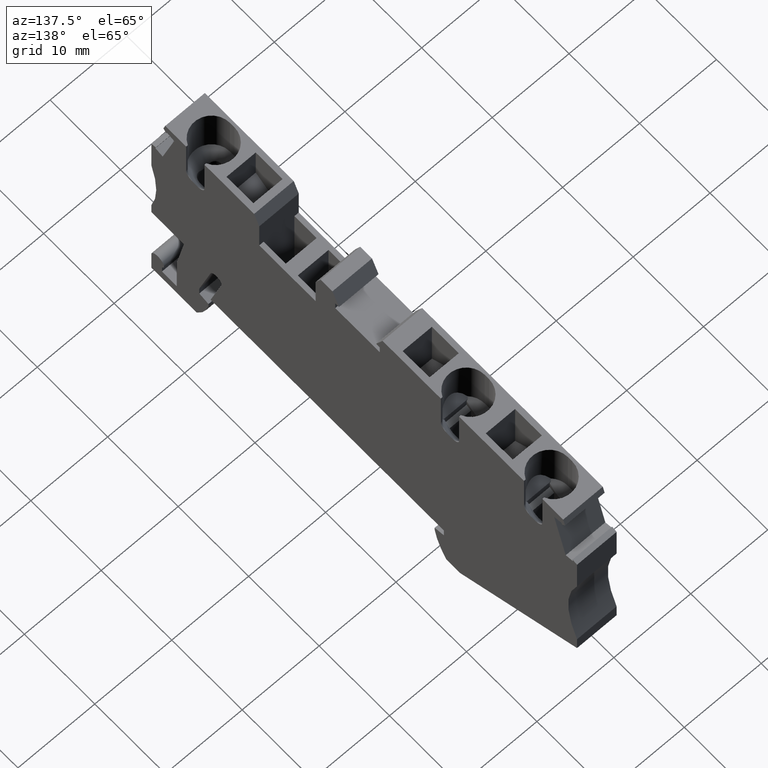
[diagram: clean part render]
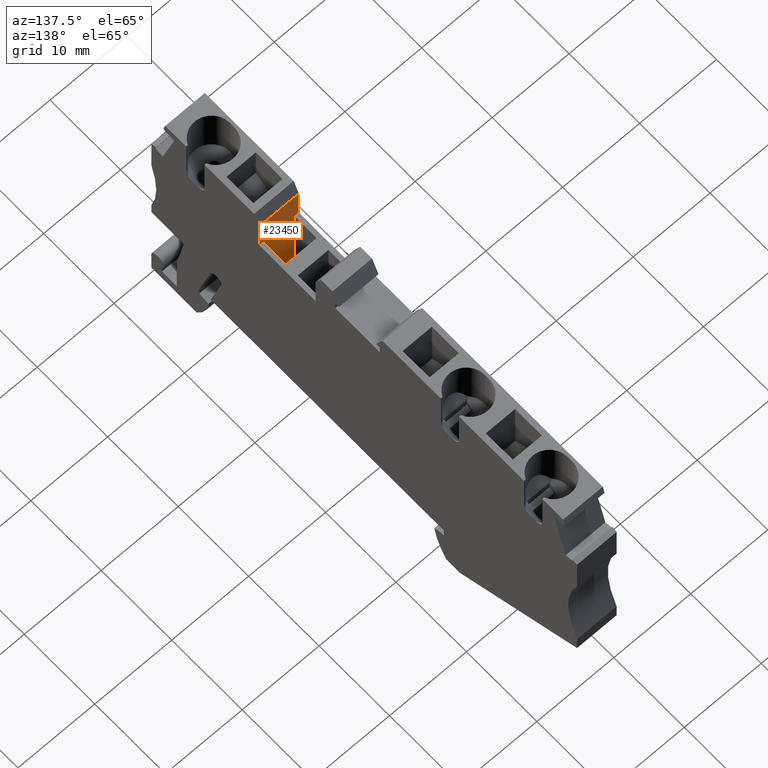
[diagram: same view with one face highlighted and labeled with its STEP entity id]
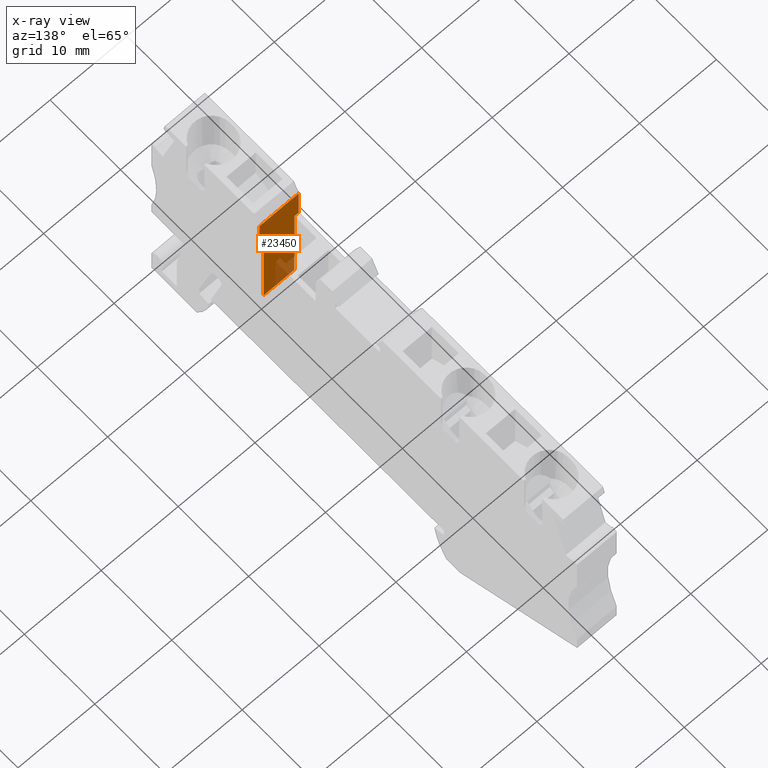
[diagram: x-ray of the same camera — body ghosted, the highlighted face saturated]
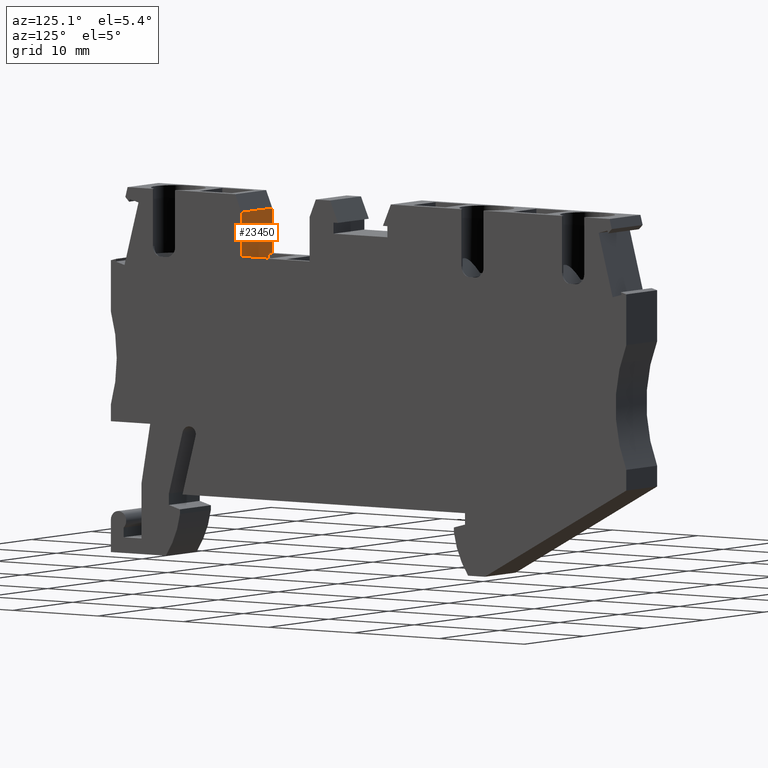
[diagram: same view with one face highlighted and labeled with its STEP entity id]
A machine part, auxiliary view. The second image highlights one B-rep face of the part: STEP entity #23450.
The next image is the same camera in x-ray: the body ghosted, the highlighted face saturated — about 14% of this face is hidden behind the body in this view.
A second angle (auxiliary view) of the same face is appended — the face is thin or edge-on in the first view.
In plain terms, the highlighted planar face has unit normal (0, 1, 0).
Its self-contained STEP definition (entity closure, byte-faithful):
#1630=CARTESIAN_POINT('',(-7.06783277832441,-15.1500000000016,49.095));
#1640=VERTEX_POINT('',#1630);
#1670=CARTESIAN_POINT('',(-7.06783277832442,-15.1500000000016,53.67));
#1680=DIRECTION('',(0.,0.,1.));
#1690=VECTOR('',#1680,1.);
#1700=LINE('',#1670,#1690);
#1710=CARTESIAN_POINT('',(-7.06783277832442,-15.1500000000016,48.52));
#1720=VERTEX_POINT('',#1710);
#1730=EDGE_CURVE('',#1720,#1640,#1700,.T.);
#2270=CARTESIAN_POINT('',(-7.06783277832441,-15.1500000000016,53.67));
#2280=VERTEX_POINT('',#2270);
#2310=CARTESIAN_POINT('',(-7.06783277832442,-15.1500000000016,53.67));
#2320=DIRECTION('',(0.,0.,1.));
#2330=VECTOR('',#2320,1.);
#2340=LINE('',#2310,#2330);
#2350=CARTESIAN_POINT('',(-7.06783277832441,-15.1500000000016,53.095));
#2360=VERTEX_POINT('',#2350);
#2370=EDGE_CURVE('',#2360,#2280,#2340,.T.);
#16000=CARTESIAN_POINT('',(-7.06783277832444,-10.8500000000033,53.67));
#16010=VERTEX_POINT('',#16000);
#16040=CARTESIAN_POINT('',(-7.06783277832433,-41.5717607425285,53.67));
#16050=DIRECTION('',(-2.76167977375508E-15,1.,0.));
#16060=VECTOR('',#16050,1.);
#16070=LINE('',#16040,#16060);
#16080=EDGE_CURVE('',#2280,#16010,#16070,.T.);
#22790=CARTESIAN_POINT('',(-7.06783277832437,-27.3499999999999,49.095));
#22800=VERTEX_POINT('',#22790);
#22880=CARTESIAN_POINT('',(-7.06783277832437,-27.3499999999999,53.095));
#22890=VERTEX_POINT('',#22880);
#22920=CARTESIAN_POINT('',(-7.06783277832437,-27.3499999999999,53.67));
#22930=DIRECTION('',(4.01826023596953E-30,-1.46035561483312E-15,1.));
#22940=VECTOR('',#22930,1.);
#22950=LINE('',#22920,#22940);
#22960=EDGE_CURVE('',#22800,#22890,#22950,.T.);
#23080=CARTESIAN_POINT('',(-7.06783277832438,-25.9026279443781,52.345));
#23090=DIRECTION('',(1.,2.76167977375508E-15,-0.));
#23100=DIRECTION('',(-2.76167977375508E-15,1.,0.));
#23110=AXIS2_PLACEMENT_3D('',#23080,#23090,#23100);
#23120=PLANE('',#23110);
#23130=CARTESIAN_POINT('',(-7.06783277832433,-41.5717607425285,53.095));
#23140=DIRECTION('',(2.76167977375508E-15,-1.,0.));
#23150=VECTOR('',#23140,1.);
#23160=LINE('',#23130,#23150);
#23170=EDGE_CURVE('',#2360,#22890,#23160,.T.);
#23180=ORIENTED_EDGE('',*,*,#23170,.T.);
#23190=ORIENTED_EDGE('',*,*,#2370,.F.);
#23200=ORIENTED_EDGE('',*,*,#16080,.F.);
#23210=CARTESIAN_POINT('',(-7.06783277832442,-10.8500000000034,53.67));
#23220=DIRECTION('',(0.,0.,1.));
#23230=VECTOR('',#23220,1.);
#23240=LINE('',#23210,#23230);
#23250=CARTESIAN_POINT('',(-7.06783277832444,-10.8500000000033,48.52));
#23260=VERTEX_POINT('',#23250);
#23270=EDGE_CURVE('',#23260,#16010,#23240,.T.);
#23280=ORIENTED_EDGE('',*,*,#23270,.T.);
#23290=CARTESIAN_POINT('',(-7.06783277832433,-41.5717607425285,48.52));
#23300=DIRECTION('',(2.76167977375508E-15,-1.,0.));
#23310=VECTOR('',#23300,1.);
#23320=LINE('',#23290,#23310);
#23330=EDGE_CURVE('',#23260,#1720,#23320,.T.);
#23340=ORIENTED_EDGE('',*,*,#23330,.F.);
#23350=ORIENTED_EDGE('',*,*,#1730,.F.);
#23360=CARTESIAN_POINT('',(-7.06783277832433,-41.5717607425285,49.095));
#23370=DIRECTION('',(2.76167977375508E-15,-1.,0.));
#23380=VECTOR('',#23370,1.);
#23390=LINE('',#23360,#23380);
#23400=EDGE_CURVE('',#1640,#22800,#23390,.T.);
#23410=ORIENTED_EDGE('',*,*,#23400,.F.);
#23420=ORIENTED_EDGE('',*,*,#22960,.F.);
#23430=EDGE_LOOP('',(#23420,#23410,#23350,#23340,#23280,#23200,#23190,
#23180));
#23440=FACE_OUTER_BOUND('',#23430,.T.);
#23450=ADVANCED_FACE('',(#23440),#23120,.T.);